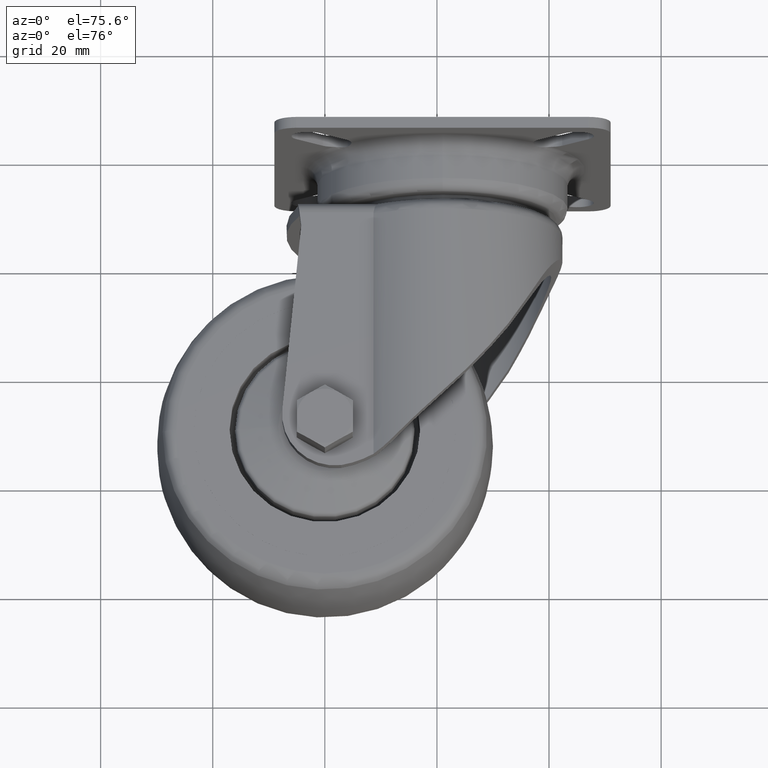
[diagram: clean part render]
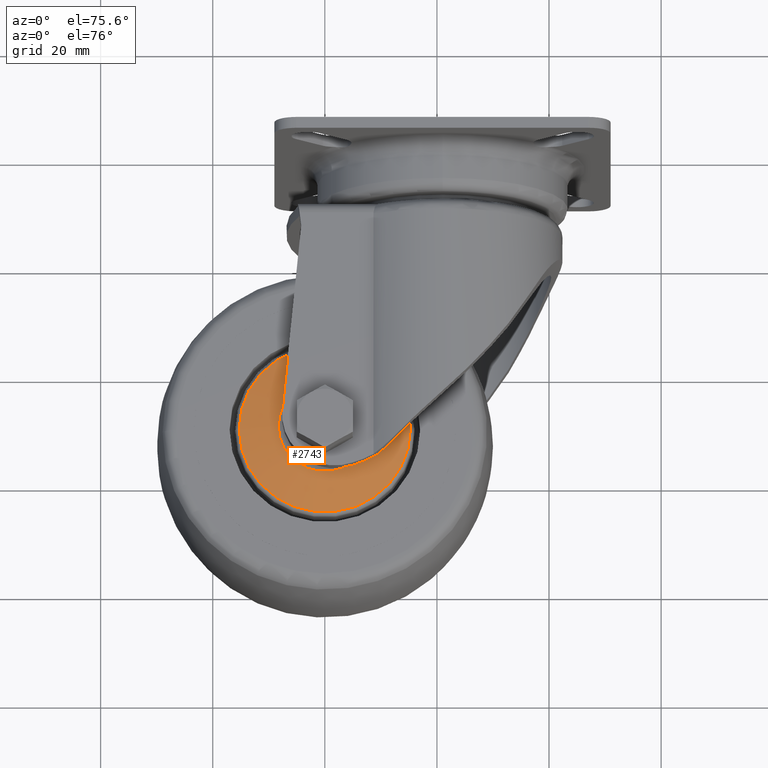
[diagram: same view with one face highlighted and labeled with its STEP entity id]
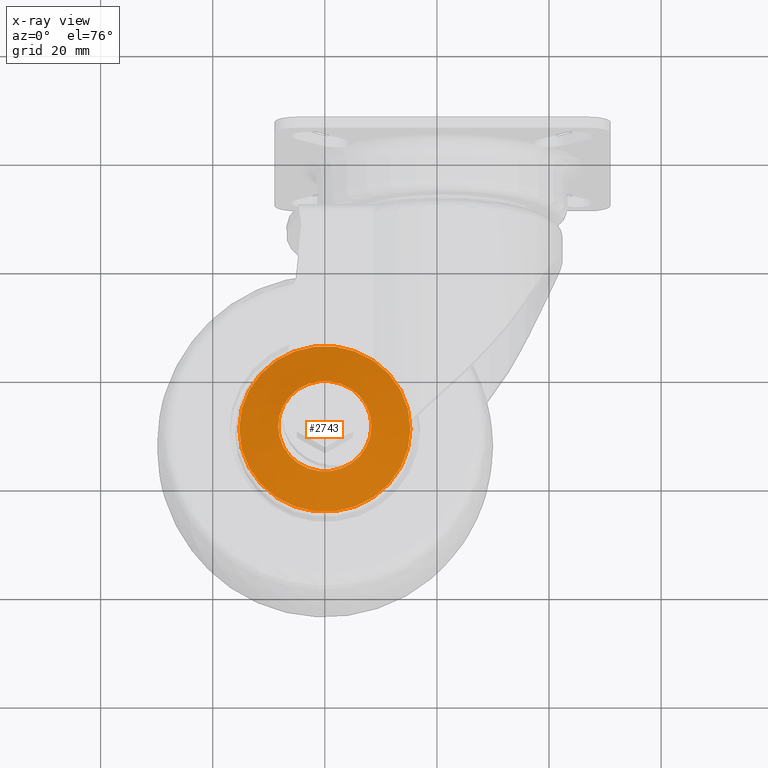
[diagram: x-ray of the same camera — body ghosted, the highlighted face saturated]
A machine part, auxiliary view. The second image highlights one B-rep face of the part: STEP entity #2743.
The next image is the same camera in x-ray: the body ghosted, the highlighted face saturated — about 0% of this face is hidden behind the body in this view.
In plain terms, the highlighted conical surface has half-angle 74 deg.
Its self-contained STEP definition (entity closure, byte-faithful):
#171=LINE('',#4582,#302);
#302=VECTOR('',#3628,15.275637355817);
#606=FACE_OUTER_BOUND('',#789,.T.);
#789=EDGE_LOOP('',(#1999,#2000,#2001,#2002));
#988=CIRCLE('',#3146,15.275637355817);
#989=CIRCLE('',#3148,8.3175482605573);
#1236=VERTEX_POINT('',#4577);
#1237=VERTEX_POINT('',#4581);
#1520=EDGE_CURVE('',#1236,#1236,#988,.T.);
#1521=EDGE_CURVE('',#1236,#1237,#171,.T.);
#1522=EDGE_CURVE('',#1237,#1237,#989,.T.);
#1999=ORIENTED_EDGE('',*,*,#1520,.F.);
#2000=ORIENTED_EDGE('',*,*,#1521,.T.);
#2001=ORIENTED_EDGE('',*,*,#1522,.T.);
#2002=ORIENTED_EDGE('',*,*,#1521,.F.);
#2687=CONICAL_SURFACE('',#3147,15.275637355817,1.2915436464758);
#2743=ADVANCED_FACE('',(#606),#2687,.T.);
#3146=AXIS2_PLACEMENT_3D('',#4579,#3624,#3625);
#3147=AXIS2_PLACEMENT_3D('',#4580,#3626,#3627);
#3148=AXIS2_PLACEMENT_3D('',#4583,#3629,#3630);
#3624=DIRECTION('center_axis',(1.,0.,0.));
#3625=DIRECTION('ref_axis',(0.,0.,-1.));
#3626=DIRECTION('center_axis',(1.,0.,0.));
#3627=DIRECTION('ref_axis',(0.,0.,-1.));
#3628=DIRECTION('',(-0.275637355817003,1.17720605907382E-16,-0.961261695938318));
#3629=DIRECTION('center_axis',(1.,0.,0.));
#3630=DIRECTION('ref_axis',(0.,0.,-1.));
#4577=CARTESIAN_POINT('',(2.01456909379523,-1.8707260392737E-15,15.275637355817));
#4579=CARTESIAN_POINT('Origin',(2.01456909379523,0.,0.));
#4580=CARTESIAN_POINT('Origin',(2.01456909379523,0.,0.));
#4581=CARTESIAN_POINT('',(0.0193691520308048,-1.01860588540451E-15,8.31754826055731));
#4582=CARTESIAN_POINT('',(2.01456909379523,-1.8707260392737E-15,15.275637355817));
#4583=CARTESIAN_POINT('Origin',(0.0193691520308402,0.,0.));